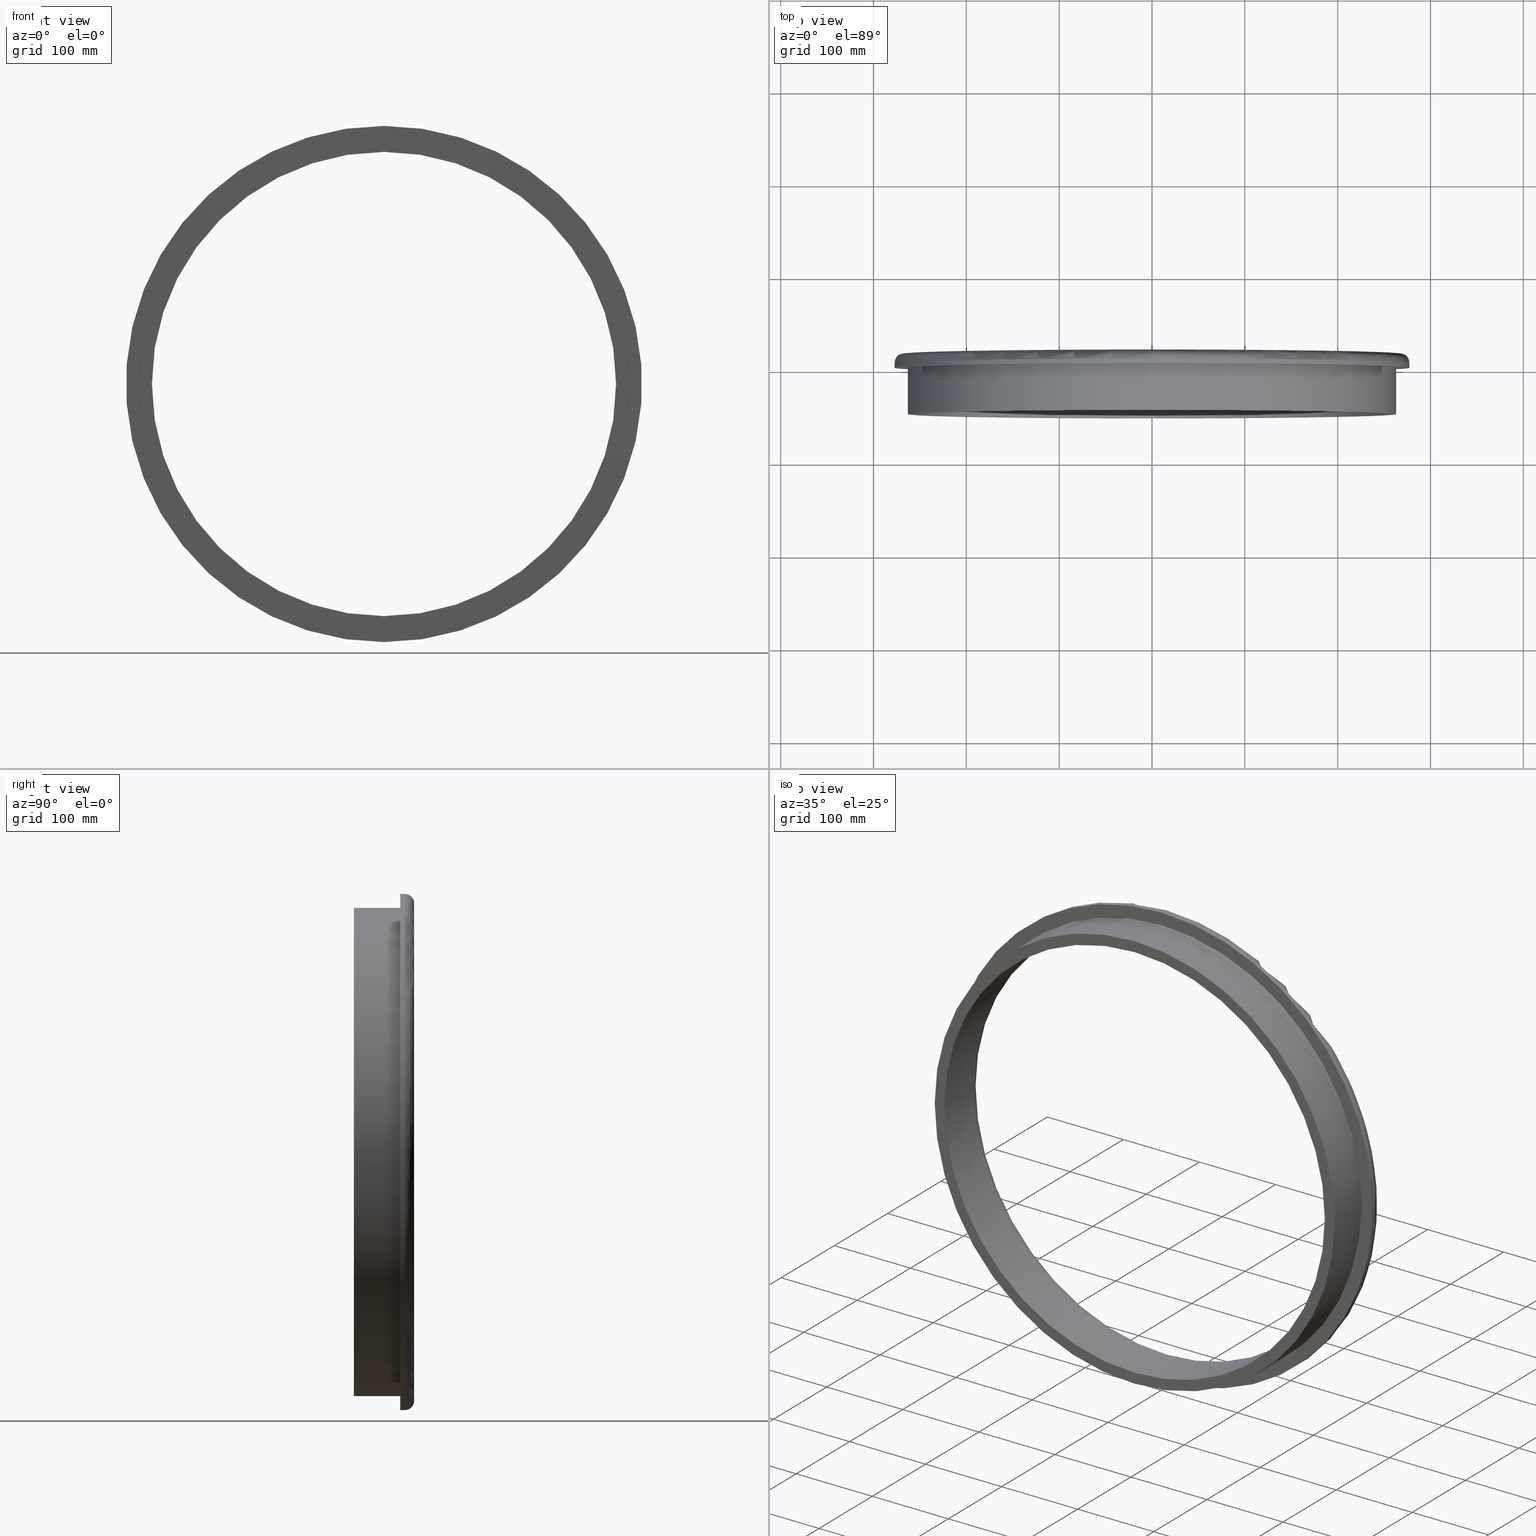
[diagram: canonical four-view strip — front | top / right | iso, engineering-drawing reading convention]
A machine part, canonical four-view strip (front | top / right | iso — engineering-drawing reading convention). The complete STEP part file that produces these views, byte-faithful:
ISO-10303-21;
HEADER;
FILE_DESCRIPTION (( 'STEP AP203' ),
    '1' );
FILE_NAME ('Rudus LV500 Muoviputken porausyhde 500.step',
    '2020-03-20T04:21:09',
    ( '' ),
    ( '' ),
    'SwSTEP 2.0',
    'SolidWorks 2019',
    '' );
FILE_SCHEMA (( 'CONFIG_CONTROL_DESIGN' ));
ENDSEC;

DATA;
#1 = LINE ( 'NONE', #325, #536 ) ;
#2 = DIRECTION ( 'NONE',  ( 0.0000000000000000000, 0.0000000000000000000, 1.000000000000000000 ) ) ;
#3 = ORIENTED_EDGE ( 'NONE', *, *, #336, .F. ) ;
#4 = CARTESIAN_POINT ( 'NONE',  ( 0.0000000000000000000, 4.999999999999997335, 0.0000000000000000000 ) ) ;
#5 = LINE ( 'NONE', #177, #359 ) ;
#6 = DIRECTION ( 'NONE',  ( -1.000000000000000000, 0.0000000000000000000, 0.0000000000000000000 ) ) ;
#7 = ADVANCED_FACE ( 'NONE', ( #234 ), #413, .T. ) ;
#8 = DIRECTION ( 'NONE',  ( 0.0000000000000000000, -0.0000000000000000000, 1.000000000000000000 ) ) ;
#9 = ORIENTED_EDGE ( 'NONE', *, *, #65, .T. ) ;
#10 = EDGE_LOOP ( 'NONE', ( #458, #101 ) ) ;
#11 = DIRECTION ( 'NONE',  ( 0.0000000000000000000, 0.0000000000000000000, 1.000000000000000000 ) ) ;
#12 = CC_DESIGN_APPROVAL ( #197, ( #546 ) ) ;
#13 = DIRECTION ( 'NONE',  ( 0.0000000000000000000, 1.000000000000000000, 0.0000000000000000000 ) ) ;
#14 = AXIS2_PLACEMENT_3D ( 'NONE', #125, #174, #11 ) ;
#15 = ORIENTED_EDGE ( 'NONE', *, *, #448, .T. ) ;
#16 = PRODUCT_DEFINITION ( 'UNKNOWN', '', #60, #378 ) ;
#17 = CIRCLE ( 'NONE', #515, 263.0000000000000568 ) ;
#18 = VERTEX_POINT ( 'NONE', #42 ) ;
#19 = AXIS2_PLACEMENT_3D ( 'NONE', #524, #103, #194 ) ;
#20 = CARTESIAN_POINT ( 'NONE',  ( 0.0000000000000000000, 4.999999999999999112, 268.0000000000000000 ) ) ;
#21 = ORIENTED_EDGE ( 'NONE', *, *, #221, .F. ) ;
#22 = CARTESIAN_POINT ( 'NONE',  ( 3.404518101629642167E-14, 4.999999999999999112, 278.0000000000000000 ) ) ;
#23 = UNCERTAINTY_MEASURE_WITH_UNIT (LENGTH_MEASURE( 1.000000000000000082E-05 ), #127, 'distance_accuracy_value', 'NONE');
#24 = VERTEX_POINT ( 'NONE', #175 ) ;
#25 = ADVANCED_FACE ( 'NONE', ( #129 ), #414, .T. ) ;
#26 = CARTESIAN_POINT ( 'NONE',  ( 3.061616997868383121E-14, -50.00000000000000000, -250.0000000000000000 ) ) ;
#27 = CIRCLE ( 'NONE', #351, 278.0000000000000000 ) ;
#28 = CC_DESIGN_PERSON_AND_ORGANIZATION_ASSIGNMENT ( #437, #396, ( #294 ) ) ;
#29 = CONTEXT_DEPENDENT_SHAPE_REPRESENTATION ( #167, #143 ) ;
#30 = COORDINATED_UNIVERSAL_TIME_OFFSET ( 2, 0, .AHEAD. ) ;
#31 = APPLICATION_PROTOCOL_DEFINITION ( 'international standard', 'config_control_design', 1994, #422 ) ;
#32 = DIRECTION ( 'NONE',  ( 0.0000000000000000000, 0.0000000000000000000, 1.000000000000000000 ) ) ;
#33 = DATE_AND_TIME ( #82, #523 ) ;
#34 = CALENDAR_DATE ( 2020, 20, 3 ) ;
#35 = ADVANCED_FACE ( 'NONE', ( #516 ), #429, .T. ) ;
#36 = COORDINATED_UNIVERSAL_TIME_OFFSET ( 2, 0, .AHEAD. ) ;
#37 = APPROVAL_PERSON_ORGANIZATION ( #468, #354, #551 ) ;
#38 = AXIS2_PLACEMENT_3D ( 'NONE', #316, #366, #320 ) ;
#39 = VECTOR ( 'NONE', #492, 1000.000000000000000 ) ;
#40 = COORDINATED_UNIVERSAL_TIME_OFFSET ( 2, 0, .AHEAD. ) ;
#41 = DIRECTION ( 'NONE',  ( 0.0000000000000000000, 1.000000000000000000, 0.0000000000000000000 ) ) ;
#42 = CARTESIAN_POINT ( 'NONE',  ( 0.0000000000000000000, 15.00000000000000000, 260.0000000000000000 ) ) ;
#43 = DIRECTION ( 'NONE',  ( 0.0000000000000000000, 0.0000000000000000000, 1.000000000000000000 ) ) ;
#44 = VERTEX_POINT ( 'NONE', #318 ) ;
#45 = DIRECTION ( 'NONE',  ( 1.000000000000000000, -0.0000000000000000000, 1.224646799147353207E-16 ) ) ;
#46 = AXIS2_PLACEMENT_3D ( 'NONE', #275, #450, #410 ) ;
#47 = CARTESIAN_POINT ( 'NONE',  ( 0.0000000000000000000, -50.00000000000000000, 0.0000000000000000000 ) ) ;
#48 = ORIENTED_EDGE ( 'NONE', *, *, #301, .T. ) ;
#49 = CARTESIAN_POINT ( 'NONE',  ( 0.0000000000000000000, -50.00000000000000000, 0.0000000000000000000 ) ) ;
#50 = DIRECTION ( 'NONE',  ( 0.0000000000000000000, 0.0000000000000000000, 1.000000000000000000 ) ) ;
#51 = EDGE_CURVE ( 'NONE', #284, #258, #17, .T. ) ;
#52 = CARTESIAN_POINT ( 'NONE',  ( 0.0000000000000000000, 0.0000000000000000000, 0.0000000000000000000 ) ) ;
#53 = PRODUCT ( 'kaivo-muovi-lapivienti', 'kaivo-muovi-lapivienti', '', ( #79 ) ) ;
#54 = ORIENTED_EDGE ( 'NONE', *, *, #445, .F. ) ;
#55 = DIRECTION ( 'NONE',  ( 0.0000000000000000000, 1.000000000000000000, 0.0000000000000000000 ) ) ;
#56 = CARTESIAN_POINT ( 'NONE',  ( 0.0000000000000000000, 0.0000000000000000000, 0.0000000000000000000 ) ) ;
#57 = DIRECTION ( 'NONE',  ( 0.0000000000000000000, 0.0000000000000000000, 1.000000000000000000 ) ) ;
#58 = ORIENTED_EDGE ( 'NONE', *, *, #538, .F. ) ;
#59 = ORIENTED_EDGE ( 'NONE', *, *, #221, .T. ) ;
#60 = PRODUCT_DEFINITION_FORMATION_WITH_SPECIFIED_SOURCE ( 'ANY', '', #70, .NOT_KNOWN. ) ;
#61 = DIRECTION ( 'NONE',  ( 0.0000000000000000000, 0.0000000000000000000, 1.000000000000000000 ) ) ;
#62 = CIRCLE ( 'NONE', #14, 278.0000000000000000 ) ;
#63 = VERTEX_POINT ( 'NONE', #219 ) ;
#64 = DIRECTION ( 'NONE',  ( -0.0000000000000000000, -1.000000000000000000, -0.0000000000000000000 ) ) ;
#65 = EDGE_CURVE ( 'NONE', #89, #44, #204, .T. ) ;
#66 = DIRECTION ( 'NONE',  ( -0.0000000000000000000, -1.000000000000000000, -0.0000000000000000000 ) ) ;
#67 = SECURITY_CLASSIFICATION ( '', '', #350 ) ;
#68 = PERSON_AND_ORGANIZATION_ROLE ( 'classification_officer' ) ;
#69 = APPROVAL_DATE_TIME ( #391, #86 ) ;
#70 = PRODUCT ( 'Rudus LV500 Muoviputken porausyhde 500', 'Rudus LV500 Muoviputken porausyhde 500', '', ( #303 ) ) ;
#71 = COORDINATED_UNIVERSAL_TIME_OFFSET ( 2, 0, .AHEAD. ) ;
#72 = COORDINATED_UNIVERSAL_TIME_OFFSET ( 2, 0, .AHEAD. ) ;
#73 = AXIS2_PLACEMENT_3D ( 'NONE', #49, #55, #521 ) ;
#74 = APPROVAL_STATUS ( 'not_yet_approved' ) ;
#75 = SHAPE_DEFINITION_REPRESENTATION ( #500, #78 ) ;
#76 = ADVANCED_FACE ( 'NONE', ( #443 ), #401, .T. ) ;
#77 = ORIENTED_EDGE ( 'NONE', *, *, #304, .F. ) ;
#78 = SHAPE_REPRESENTATION ( 'kaivo-muovi-lapivienti', ( #372 ), #435 ) ;
#79 = MECHANICAL_CONTEXT ( 'NONE', #200, 'mechanical' ) ;
#80 = PERSON_AND_ORGANIZATION_ROLE ( 'classification_officer' ) ;
#81 = CIRCLE ( 'NONE', #249, 250.0000000000000000 ) ;
#82 = CALENDAR_DATE ( 2020, 20, 3 ) ;
#83 = DIRECTION ( 'NONE',  ( 0.0000000000000000000, 0.0000000000000000000, 1.000000000000000000 ) ) ;
#84 = CARTESIAN_POINT ( 'NONE',  ( 3.220821081757540076E-14, -50.00000000000000000, -263.0000000000000568 ) ) ;
#85 = CARTESIAN_POINT ( 'NONE',  ( 0.0000000000000000000, -50.00000000000000000, 0.0000000000000000000 ) ) ;
#86 = APPROVAL ( #114, 'UNSPECIFIED' ) ;
#87 = ORIENTED_EDGE ( 'NONE', *, *, #159, .T. ) ;
#88 = DIRECTION ( 'NONE',  ( 0.0000000000000000000, 0.0000000000000000000, 1.000000000000000000 ) ) ;
#89 = VERTEX_POINT ( 'NONE', #91 ) ;
#90 = APPROVAL_PERSON_ORGANIZATION ( #544, #197, #345 ) ;
#91 = CARTESIAN_POINT ( 'NONE',  ( 0.0000000000000000000, 4.999999999999999112, -278.0000000000000000 ) ) ;
#92 = CIRCLE ( 'NONE', #264, 268.0000000000000000 ) ;
#93 = ORIENTED_EDGE ( 'NONE', *, *, #65, .F. ) ;
#94 = DIRECTION ( 'NONE',  ( 1.000000000000000000, 0.0000000000000000000, 0.0000000000000000000 ) ) ;
#95 = DIRECTION ( 'NONE',  ( 0.0000000000000000000, 0.0000000000000000000, -1.000000000000000000 ) ) ;
#96 = LINE ( 'NONE', #243, #109 ) ;
#97 = ORIENTED_EDGE ( 'NONE', *, *, #445, .T. ) ;
#98 = ORIENTED_EDGE ( 'NONE', *, *, #108, .T. ) ;
#99 = CARTESIAN_POINT ( 'NONE',  ( 0.0000000000000000000, -50.00000000000000000, 0.0000000000000000000 ) ) ;
#100 = DIRECTION ( 'NONE',  ( 0.0000000000000000000, 1.000000000000000000, 0.0000000000000000000 ) ) ;
#101 = ORIENTED_EDGE ( 'NONE', *, *, #261, .T. ) ;
#102 = CC_DESIGN_APPROVAL ( #86, ( #60 ) ) ;
#103 = DIRECTION ( 'NONE',  ( -1.000000000000000000, 0.0000000000000000000, 0.0000000000000000000 ) ) ;
#104 = CARTESIAN_POINT ( 'NONE',  ( 3.404518101629642167E-14, 15.00000000000000000, 278.0000000000000000 ) ) ;
#105 = ADVANCED_FACE ( 'NONE', ( #488 ), #522, .T. ) ;
#106 = APPROVAL_PERSON_ORGANIZATION ( #112, #338, #463 ) ;
#107 = AXIS2_PLACEMENT_3D ( 'NONE', #85, #41, #315 ) ;
#108 = EDGE_CURVE ( 'NONE', #233, #18, #309, .T. ) ;
#109 = VECTOR ( 'NONE', #66, 1000.000000000000000 ) ;
#110 = ORIENTED_EDGE ( 'NONE', *, *, #328, .T. ) ;
#111 = DATE_AND_TIME ( #254, #434 ) ;
#112 = PERSON_AND_ORGANIZATION ( #421, #163 ) ;
#113 = PERSON_AND_ORGANIZATION ( #550, #553 ) ;
#114 = APPROVAL_STATUS ( 'not_yet_approved' ) ;
#115 = APPROVAL ( #116, 'UNSPECIFIED' ) ;
#116 = APPROVAL_STATUS ( 'not_yet_approved' ) ;
#117 = EDGE_CURVE ( 'NONE', #405, #456, #150, .T. ) ;
#118 = ORIENTED_EDGE ( 'NONE', *, *, #336, .T. ) ;
#119 = AXIS2_PLACEMENT_3D ( 'NONE', #52, #407, #310 ) ;
#120 = SHAPE_DEFINITION_REPRESENTATION ( #148, #141 ) ;
#121 = CALENDAR_DATE ( 2020, 20, 3 ) ;
#122 = PERSON_AND_ORGANIZATION_ROLE ( 'creator' ) ;
#123 = AXIS2_PLACEMENT_3D ( 'NONE', #230, #170, #514 ) ;
#124 = DIRECTION ( 'NONE',  ( 0.0000000000000000000, 0.0000000000000000000, 1.000000000000000000 ) ) ;
#125 = CARTESIAN_POINT ( 'NONE',  ( 0.0000000000000000000, 4.999999999999999112, 0.0000000000000000000 ) ) ;
#126 = DIRECTION ( 'NONE',  ( 0.0000000000000000000, 1.000000000000000000, 0.0000000000000000000 ) ) ;
#127 =( LENGTH_UNIT ( ) NAMED_UNIT ( * ) SI_UNIT ( .MILLI., .METRE. ) );
#128 = ORIENTED_EDGE ( 'NONE', *, *, #424, .T. ) ;
#129 = FACE_OUTER_BOUND ( 'NONE', #278, .T. ) ;
#130 = FACE_OUTER_BOUND ( 'NONE', #245, .T. ) ;
#131 = DIRECTION ( 'NONE',  ( 0.0000000000000000000, 1.000000000000000000, 0.0000000000000000000 ) ) ;
#132 = EDGE_CURVE ( 'NONE', #284, #330, #1, .T. ) ;
#133 = CARTESIAN_POINT ( 'NONE',  ( 3.061616997868383121E-14, 4.999999999999997335, -250.0000000000000000 ) ) ;
#134 = CARTESIAN_POINT ( 'NONE',  ( 0.0000000000000000000, 15.00000000000000000, 0.0000000000000000000 ) ) ;
#135 = DIRECTION ( 'NONE',  ( 0.0000000000000000000, 1.000000000000000000, 0.0000000000000000000 ) ) ;
#136 = CLOSED_SHELL ( 'NONE', ( #76, #25, #105, #348, #425, #510, #199, #537, #280, #168, #7, #547, #35 ) ) ;
#137 = CIRCLE ( 'NONE', #384, 250.0000000000000000 ) ;
#138 = FACE_OUTER_BOUND ( 'NONE', #412, .T. ) ;
#139 = VERTEX_POINT ( 'NONE', #226 ) ;
#140 = ORIENTED_EDGE ( 'NONE', *, *, #424, .F. ) ;
#141 = SHAPE_REPRESENTATION ( 'Rudus LV500 Muoviputken porausyhde 500', ( #253, #203 ), #172 ) ;
#142 = CARTESIAN_POINT ( 'NONE',  ( 3.061616997868383121E-14, -50.00000000000000000, -250.0000000000000000 ) ) ;
#143 = PRODUCT_DEFINITION_SHAPE ( 'NONE', 'NONE',  #557 ) ;
#144 = CARTESIAN_POINT ( 'NONE',  ( 0.0000000000000000000, 15.00000000000000000, 0.0000000000000000000 ) ) ;
#145 = FACE_OUTER_BOUND ( 'NONE', #337, .T. ) ;
#146 = ORIENTED_EDGE ( 'NONE', *, *, #436, .T. ) ;
#147 = CARTESIAN_POINT ( 'NONE',  ( 0.0000000000000000000, 4.999999999999997335, 0.0000000000000000000 ) ) ;
#148 = PRODUCT_DEFINITION_SHAPE ( 'NONE', 'NONE',  #16 ) ;
#149 = DATE_TIME_ROLE ( 'classification_date' ) ;
#150 = CIRCLE ( 'NONE', #302, 278.0000000000000000 ) ;
#151 = ORIENTED_EDGE ( 'NONE', *, *, #441, .F. ) ;
#152 = EDGE_CURVE ( 'NONE', #258, #228, #5, .T. ) ;
#153 = DATE_TIME_ROLE ( 'creation_date' ) ;
#154 = ORIENTED_EDGE ( 'NONE', *, *, #246, .F. ) ;
#155 = APPROVAL_PERSON_ORGANIZATION ( #161, #344, #501 ) ;
#156 = APPLICATION_PROTOCOL_DEFINITION ( 'international standard', 'config_control_design', 1994, #218 ) ;
#157 = CIRCLE ( 'NONE', #326, 250.0000000000000000 ) ;
#158 = PERSON_AND_ORGANIZATION ( #421, #163 ) ;
#159 = EDGE_CURVE ( 'NONE', #228, #330, #300, .T. ) ;
#160 = APPLICATION_PROTOCOL_DEFINITION ( 'international standard', 'config_control_design', 1994, #200 ) ;
#161 = PERSON_AND_ORGANIZATION ( #421, #163 ) ;
#162 = PERSON_AND_ORGANIZATION_ROLE ( 'design_supplier' ) ;
#163 = ORGANIZATION ( 'UNSPECIFIED', 'UNSPECIFIED', '' ) ;
#164 = PERSON_AND_ORGANIZATION ( #421, #163 ) ;
#165 = CIRCLE ( 'NONE', #38, 10.00000000000000888 ) ;
#166 = DATE_TIME_ROLE ( 'creation_date' ) ;
#167 =( REPRESENTATION_RELATIONSHIP ('NONE','NONE', #141, #78 ) REPRESENTATION_RELATIONSHIP_WITH_TRANSFORMATION ( #431 )SHAPE_REPRESENTATION_RELATIONSHIP( ) );
#168 = ADVANCED_FACE ( 'NONE', ( #364, #178 ), #525, .F. ) ;
#169 = APPROVAL_DATE_TIME ( #509, #354 ) ;
#170 = DIRECTION ( 'NONE',  ( 0.0000000000000000000, 0.0000000000000000000, 1.000000000000000000 ) ) ;
#171 = CC_DESIGN_APPROVAL ( #354, ( #294 ) ) ;
#172 =( GEOMETRIC_REPRESENTATION_CONTEXT ( 3 ) GLOBAL_UNCERTAINTY_ASSIGNED_CONTEXT ( ( #23 ) ) GLOBAL_UNIT_ASSIGNED_CONTEXT ( ( #127, #319, #426 ) ) REPRESENTATION_CONTEXT ( 'NONE', 'WORKASPACE' ) );
#173 = DIRECTION ( 'NONE',  ( 0.0000000000000000000, 1.000000000000000000, 0.0000000000000000000 ) ) ;
#174 = DIRECTION ( 'NONE',  ( -0.0000000000000000000, -1.000000000000000000, -0.0000000000000000000 ) ) ;
#175 = CARTESIAN_POINT ( 'NONE',  ( 0.0000000000000000000, -50.00000000000000000, 250.0000000000000000 ) ) ;
#176 =( NAMED_UNIT ( * ) PLANE_ANGLE_UNIT ( ) SI_UNIT ( $, .RADIAN. ) );
#177 = CARTESIAN_POINT ( 'NONE',  ( 3.220821081757540076E-14, -50.00000000000000000, -263.0000000000000568 ) ) ;
#178 = FACE_OUTER_BOUND ( 'NONE', #183, .T. ) ;
#179 = DIRECTION ( 'NONE',  ( 0.0000000000000000000, 1.000000000000000000, 0.0000000000000000000 ) ) ;
#180 = DIRECTION ( 'NONE',  ( 0.0000000000000000000, 1.000000000000000000, 0.0000000000000000000 ) ) ;
#181 = DIRECTION ( 'NONE',  ( 0.0000000000000000000, 0.0000000000000000000, 1.000000000000000000 ) ) ;
#182 = PLANE ( 'NONE',  #503 ) ;
#183 = EDGE_LOOP ( 'NONE', ( #461, #77 ) ) ;
#184 = ORIENTED_EDGE ( 'NONE', *, *, #132, .F. ) ;
#185 = DIRECTION ( 'NONE',  ( 0.0000000000000000000, 0.0000000000000000000, 1.000000000000000000 ) ) ;
#186 = CARTESIAN_POINT ( 'NONE',  ( 0.0000000000000000000, -50.00000000000000000, 0.0000000000000000000 ) ) ;
#187 = AXIS2_PLACEMENT_3D ( 'NONE', #99, #416, #459 ) ;
#188 = ORIENTED_EDGE ( 'NONE', *, *, #259, .T. ) ;
#189 = DIRECTION ( 'NONE',  ( 0.0000000000000000000, 1.000000000000000000, 0.0000000000000000000 ) ) ;
#190 = ORIENTED_EDGE ( 'NONE', *, *, #51, .T. ) ;
#191 = CC_DESIGN_PERSON_AND_ORGANIZATION_ASSIGNMENT ( #164, #545, ( #70 ) ) ;
#192 = DIRECTION ( 'NONE',  ( 0.0000000000000000000, 1.000000000000000000, 0.0000000000000000000 ) ) ;
#193 = EDGE_LOOP ( 'NONE', ( #3, #15, #455, #229 ) ) ;
#194 = DIRECTION ( 'NONE',  ( 0.0000000000000000000, 0.0000000000000000000, 1.000000000000000000 ) ) ;
#195 = EDGE_CURVE ( 'NONE', #233, #531, #165, .T. ) ;
#196 = AXIS2_PLACEMENT_3D ( 'NONE', #532, #135, #236 ) ;
#197 = APPROVAL ( #511, 'UNSPECIFIED' ) ;
#198 = VECTOR ( 'NONE', #288, 1000.000000000000000 ) ;
#199 = ADVANCED_FACE ( 'NONE', ( #446, #138 ), #182, .F. ) ;
#200 = APPLICATION_CONTEXT ( 'configuration controlled 3d designs of mechanical parts and assemblies' ) ;
#201 = PERSON_AND_ORGANIZATION_ROLE ( 'creator' ) ;
#202 = PERSON_AND_ORGANIZATION_ROLE ( 'creator' ) ;
#203 = AXIS2_PLACEMENT_3D ( 'NONE', #477, #88, #360 ) ;
#204 = CIRCLE ( 'NONE', #223, 10.00000000000000888 ) ;
#205 = COORDINATED_UNIVERSAL_TIME_OFFSET ( 2, 0, .AHEAD. ) ;
#206 = CC_DESIGN_PERSON_AND_ORGANIZATION_ASSIGNMENT ( #298, #201, ( #60 ) ) ;
#207 = ADVANCED_BREP_SHAPE_REPRESENTATION ( '', ( #270, #372 ), #435 ) ;
#208 = APPROVAL_STATUS ( 'not_yet_approved' ) ;
#209 = COORDINATED_UNIVERSAL_TIME_OFFSET ( 2, 0, .AHEAD. ) ;
#210 = CC_DESIGN_APPROVAL ( #344, ( #16 ) ) ;
#211 = APPROVAL_ROLE ( '' ) ;
#212 = LOCAL_TIME ( 6, 21, 9.000000000000000000, #40 ) ;
#213 = COORDINATED_UNIVERSAL_TIME_OFFSET ( 2, 0, .AHEAD. ) ;
#214 = DIRECTION ( 'NONE',  ( 0.0000000000000000000, 1.000000000000000000, 0.0000000000000000000 ) ) ;
#215 = CARTESIAN_POINT ( 'NONE',  ( 0.0000000000000000000, 4.999999999999999112, 0.0000000000000000000 ) ) ;
#216 = APPROVAL_DATE_TIME ( #255, #338 ) ;
#217 = CC_DESIGN_DATE_AND_TIME_ASSIGNMENT ( #260, #166, ( #294 ) ) ;
#218 = APPLICATION_CONTEXT ( 'configuration controlled 3d designs of mechanical parts and assemblies' ) ;
#219 = CARTESIAN_POINT ( 'NONE',  ( 0.0000000000000000000, 4.999999999999997335, 250.0000000000000000 ) ) ;
#220 = CC_DESIGN_DATE_AND_TIME_ASSIGNMENT ( #111, #149, ( #67 ) ) ;
#221 = EDGE_CURVE ( 'NONE', #44, #139, #92, .T. ) ;
#222 = FACE_OUTER_BOUND ( 'NONE', #540, .T. ) ;
#223 = AXIS2_PLACEMENT_3D ( 'NONE', #479, #45, #442 ) ;
#224 = DIRECTION ( 'NONE',  ( 0.0000000000000000000, -0.0000000000000000000, 1.000000000000000000 ) ) ;
#225 = ORIENTED_EDGE ( 'NONE', *, *, #301, .F. ) ;
#226 = CARTESIAN_POINT ( 'NONE',  ( 0.0000000000000000000, 15.00000000000000000, 268.0000000000000000 ) ) ;
#227 = DIRECTION ( 'NONE',  ( 0.0000000000000000000, 1.000000000000000000, 0.0000000000000000000 ) ) ;
#228 = VERTEX_POINT ( 'NONE', #520 ) ;
#229 = ORIENTED_EDGE ( 'NONE', *, *, #117, .T. ) ;
#230 = CARTESIAN_POINT ( 'NONE',  ( 0.0000000000000000000, 0.0000000000000000000, 0.0000000000000000000 ) ) ;
#231 = DIRECTION ( 'NONE',  ( 0.0000000000000000000, 0.0000000000000000000, 1.000000000000000000 ) ) ;
#232 = DIRECTION ( 'NONE',  ( 0.0000000000000000000, 0.0000000000000000000, 1.000000000000000000 ) ) ;
#233 = VERTEX_POINT ( 'NONE', #451 ) ;
#234 = FACE_OUTER_BOUND ( 'NONE', #193, .T. ) ;
#235 = APPROVAL_PERSON_ORGANIZATION ( #353, #115, #211 ) ;
#236 = DIRECTION ( 'NONE',  ( 0.0000000000000000000, -0.0000000000000000000, 1.000000000000000000 ) ) ;
#237 = AXIS2_PLACEMENT_3D ( 'NONE', #186, #100, #517 ) ;
#238 = CIRCLE ( 'NONE', #395, 278.0000000000000000 ) ;
#239 = ORIENTED_EDGE ( 'NONE', *, *, #369, .F. ) ;
#240 = CARTESIAN_POINT ( 'NONE',  ( 0.0000000000000000000, 0.0000000000000000000, 0.0000000000000000000 ) ) ;
#241 = CC_DESIGN_PERSON_AND_ORGANIZATION_ASSIGNMENT ( #113, #68, ( #67 ) ) ;
#242 = ORIENTED_EDGE ( 'NONE', *, *, #195, .T. ) ;
#243 = CARTESIAN_POINT ( 'NONE',  ( 0.0000000000000000000, 15.00000000000000000, -278.0000000000000000 ) ) ;
#244 = APPROVAL_DATE_TIME ( #542, #464 ) ;
#245 = EDGE_LOOP ( 'NONE', ( #140, #151, #110, #493 ) ) ;
#246 = EDGE_CURVE ( 'NONE', #330, #228, #423, .T. ) ;
#247 = LOCAL_TIME ( 6, 21, 9.000000000000000000, #205 ) ;
#248 = AXIS2_PLACEMENT_3D ( 'NONE', #519, #485, #95 ) ;
#249 = AXIS2_PLACEMENT_3D ( 'NONE', #147, #286, #61 ) ;
#250 = PERSON_AND_ORGANIZATION_ROLE ( 'classification_officer' ) ;
#251 = APPROVAL_STATUS ( 'not_yet_approved' ) ;
#252 = CC_DESIGN_SECURITY_CLASSIFICATION ( #67, ( #557 ) ) ;
#253 = AXIS2_PLACEMENT_3D ( 'NONE', #430, #32, #392 ) ;
#254 = CALENDAR_DATE ( 2020, 20, 3 ) ;
#255 = DATE_AND_TIME ( #427, #388 ) ;
#256 = CALENDAR_DATE ( 2020, 20, 3 ) ;
#257 = PERSON_AND_ORGANIZATION ( #421, #163 ) ;
#258 = VERTEX_POINT ( 'NONE', #84 ) ;
#259 = EDGE_CURVE ( 'NONE', #18, #233, #447, .T. ) ;
#260 = DATE_AND_TIME ( #308, #212 ) ;
#261 = EDGE_CURVE ( 'NONE', #331, #24, #548, .T. ) ;
#262 = APPROVAL_PERSON_ORGANIZATION ( #113, #464, #296 ) ;
#263 = PERSON_AND_ORGANIZATION ( #421, #163 ) ;
#264 = AXIS2_PLACEMENT_3D ( 'NONE', #329, #227, #2 ) ;
#265 = AXIS2_PLACEMENT_3D ( 'NONE', #20, #6, #181 ) ;
#266 = APPROVAL_DATE_TIME ( #33, #115 ) ;
#267 = DIRECTION ( 'NONE',  ( 0.0000000000000000000, 0.0000000000000000000, 1.000000000000000000 ) ) ;
#268 = ORIENTED_EDGE ( 'NONE', *, *, #369, .T. ) ;
#269 = DIRECTION ( 'NONE',  ( 0.0000000000000000000, 0.0000000000000000000, -1.000000000000000000 ) ) ;
#270 = MANIFOLD_SOLID_BREP ( 'Fillet1', #136 ) ;
#271 = CC_DESIGN_DATE_AND_TIME_ASSIGNMENT ( #543, #505, ( #349 ) ) ;
#272 = DIRECTION ( 'NONE',  ( 0.0000000000000000000, 1.000000000000000000, 0.0000000000000000000 ) ) ;
#273 = LOCAL_TIME ( 6, 21, 9.000000000000000000, #209 ) ;
#274 = AXIS2_PLACEMENT_3D ( 'NONE', #370, #192, #232 ) ;
#275 = CARTESIAN_POINT ( 'NONE',  ( 0.0000000000000000000, 0.0000000000000000000, 0.0000000000000000000 ) ) ;
#276 = CIRCLE ( 'NONE', #19, 10.00000000000000888 ) ;
#277 = EDGE_LOOP ( 'NONE', ( #490, #97, #496, #452 ) ) ;
#278 = EDGE_LOOP ( 'NONE', ( #470, #242, #487, #239 ) ) ;
#279 = DIRECTION ( 'NONE',  ( 0.0000000000000000000, 1.000000000000000000, 0.0000000000000000000 ) ) ;
#280 = ADVANCED_FACE ( 'NONE', ( #420, #145 ), #418, .T. ) ;
#281 = CARTESIAN_POINT ( 'NONE',  ( 0.0000000000000000000, -50.00000000000000000, 0.0000000000000000000 ) ) ;
#282 = ORIENTED_EDGE ( 'NONE', *, *, #482, .F. ) ;
#283 = DIRECTION ( 'NONE',  ( 0.0000000000000000000, 1.000000000000000000, 0.0000000000000000000 ) ) ;
#284 = VERTEX_POINT ( 'NONE', #406 ) ;
#285 = APPROVAL_PERSON_ORGANIZATION ( #257, #86, #393 ) ;
#286 = DIRECTION ( 'NONE',  ( 0.0000000000000000000, 1.000000000000000000, 0.0000000000000000000 ) ) ;
#287 = CC_DESIGN_PERSON_AND_ORGANIZATION_ASSIGNMENT ( #506, #122, ( #546 ) ) ;
#288 = DIRECTION ( 'NONE',  ( -0.0000000000000000000, -1.000000000000000000, -0.0000000000000000000 ) ) ;
#289 = DESIGN_CONTEXT ( 'detailed design', #292, 'design' ) ;
#290 = CALENDAR_DATE ( 2020, 20, 3 ) ;
#291 = LOCAL_TIME ( 6, 21, 9.000000000000000000, #72 ) ;
#292 = APPLICATION_CONTEXT ( 'configuration controlled 3d designs of mechanical parts and assemblies' ) ;
#293 = AXIS2_PLACEMENT_3D ( 'NONE', #362, #476, #83 ) ;
#294 = PRODUCT_DEFINITION ( 'UNKNOWN', '', #546, #289 ) ;
#295 = EDGE_LOOP ( 'NONE', ( #527, #128, #526, #499 ) ) ;
#296 = APPROVAL_ROLE ( '' ) ;
#297 = CALENDAR_DATE ( 2020, 20, 3 ) ;
#298 = PERSON_AND_ORGANIZATION ( #421, #163 ) ;
#299 = APPLICATION_PROTOCOL_DEFINITION ( 'international standard', 'config_control_design', 1994, #292 ) ;
#300 = CIRCLE ( 'NONE', #46, 263.0000000000000568 ) ;
#301 = EDGE_CURVE ( 'NONE', #139, #44, #508, .T. ) ;
#302 = AXIS2_PLACEMENT_3D ( 'NONE', #56, #131, #231 ) ;
#303 = MECHANICAL_CONTEXT ( 'NONE', #218, 'mechanical' ) ;
#304 = EDGE_CURVE ( 'NONE', #456, #405, #27, .T. ) ;
#305 = APPROVAL_DATE_TIME ( #306, #197 ) ;
#306 = DATE_AND_TIME ( #121, #380 ) ;
#307 = LOCAL_TIME ( 6, 21, 9.000000000000000000, #347 ) ;
#308 = CALENDAR_DATE ( 2020, 20, 3 ) ;
#309 = CIRCLE ( 'NONE', #438, 260.0000000000000000 ) ;
#310 = DIRECTION ( 'NONE',  ( 0.0000000000000000000, 0.0000000000000000000, 1.000000000000000000 ) ) ;
#311 = SHAPE_REPRESENTATION_RELATIONSHIP ( 'NONE' , 'NONE' ,  #78, #207 ) ;
#312 = CC_DESIGN_DATE_AND_TIME_ASSIGNMENT ( #433, #472, ( #486 ) ) ;
#313 = VERTEX_POINT ( 'NONE', #22 ) ;
#314 = DIRECTION ( 'NONE',  ( 0.0000000000000000000, 0.0000000000000000000, 1.000000000000000000 ) ) ;
#315 = DIRECTION ( 'NONE',  ( 0.0000000000000000000, 0.0000000000000000000, 1.000000000000000000 ) ) ;
#316 = CARTESIAN_POINT ( 'NONE',  ( 3.184081677783118901E-14, 4.999999999999997335, -260.0000000000000000 ) ) ;
#317 = ORIENTED_EDGE ( 'NONE', *, *, #246, .T. ) ;
#318 = CARTESIAN_POINT ( 'NONE',  ( 3.343285761672273962E-14, 15.00000000000000000, -268.0000000000000000 ) ) ;
#319 =( NAMED_UNIT ( * ) PLANE_ANGLE_UNIT ( ) SI_UNIT ( $, .RADIAN. ) );
#320 = DIRECTION ( 'NONE',  ( 1.224646799147349509E-16, 0.0000000000000000000, -1.000000000000000000 ) ) ;
#321 = ORIENTED_EDGE ( 'NONE', *, *, #152, .T. ) ;
#322 = LOCAL_TIME ( 6, 21, 9.000000000000000000, #36 ) ;
#323 = EDGE_CURVE ( 'NONE', #63, #531, #81, .T. ) ;
#324 = CARTESIAN_POINT ( 'NONE',  ( 0.0000000000000000000, 4.999999999999997335, 0.0000000000000000000 ) ) ;
#325 = CARTESIAN_POINT ( 'NONE',  ( 0.0000000000000000000, -50.00000000000000000, 263.0000000000000568 ) ) ;
#326 = AXIS2_PLACEMENT_3D ( 'NONE', #281, #189, #57 ) ;
#327 = CARTESIAN_POINT ( 'NONE',  ( 0.0000000000000000000, 0.0000000000000000000, 263.0000000000000568 ) ) ;
#328 = EDGE_CURVE ( 'NONE', #24, #63, #377, .T. ) ;
#329 = CARTESIAN_POINT ( 'NONE',  ( 0.0000000000000000000, 15.00000000000000000, 0.0000000000000000000 ) ) ;
#330 = VERTEX_POINT ( 'NONE', #327 ) ;
#331 = VERTEX_POINT ( 'NONE', #142 ) ;
#332 = LINE ( 'NONE', #26, #39 ) ;
#333 = EDGE_LOOP ( 'NONE', ( #190, #321, #154, #184 ) ) ;
#334 = DIRECTION ( 'NONE',  ( 0.0000000000000000000, 0.0000000000000000000, 1.000000000000000000 ) ) ;
#335 = DIRECTION ( 'NONE',  ( 0.0000000000000000000, 1.000000000000000000, 0.0000000000000000000 ) ) ;
#336 = EDGE_CURVE ( 'NONE', #313, #456, #497, .T. ) ;
#337 = EDGE_LOOP ( 'NONE', ( #48, #59 ) ) ;
#338 = APPROVAL ( #74, 'UNSPECIFIED' ) ;
#339 = PERSON_AND_ORGANIZATION_ROLE ( 'design_supplier' ) ;
#340 = AXIS2_PLACEMENT_3D ( 'NONE', #356, #513, #124 ) ;
#341 = APPROVAL_STATUS ( 'not_yet_approved' ) ;
#342 = AXIS2_PLACEMENT_3D ( 'NONE', #494, #283, #489 ) ;
#343 = APPROVAL_DATE_TIME ( #507, #344 ) ;
#344 = APPROVAL ( #251, 'UNSPECIFIED' ) ;
#345 = APPROVAL_ROLE ( '' ) ;
#346 = CC_DESIGN_PERSON_AND_ORGANIZATION_ASSIGNMENT ( #440, #80, ( #486 ) ) ;
#347 = COORDINATED_UNIVERSAL_TIME_OFFSET ( 2, 0, .AHEAD. ) ;
#348 = ADVANCED_FACE ( 'NONE', ( #411 ), #460, .F. ) ;
#349 = SECURITY_CLASSIFICATION ( '', '', #385 ) ;
#350 = SECURITY_CLASSIFICATION_LEVEL ( 'unclassified' ) ;
#351 = AXIS2_PLACEMENT_3D ( 'NONE', #240, #528, #334 ) ;
#352 = VECTOR ( 'NONE', #335, 1000.000000000000000 ) ;
#353 = PERSON_AND_ORGANIZATION ( #421, #163 ) ;
#354 = APPROVAL ( #208, 'UNSPECIFIED' ) ;
#355 = COORDINATED_UNIVERSAL_TIME_OFFSET ( 2, 0, .AHEAD. ) ;
#356 = CARTESIAN_POINT ( 'NONE',  ( 0.0000000000000000000, 15.00000000000000000, 0.0000000000000000000 ) ) ;
#357 = CYLINDRICAL_SURFACE ( 'NONE', #107, 250.0000000000000000 ) ;
#358 = CC_DESIGN_APPROVAL ( #338, ( #349 ) ) ;
#359 = VECTOR ( 'NONE', #279, 1000.000000000000000 ) ;
#360 = DIRECTION ( 'NONE',  ( 1.000000000000000000, 0.0000000000000000000, 0.0000000000000000000 ) ) ;
#361 = ORIENTED_EDGE ( 'NONE', *, *, #51, .F. ) ;
#362 = CARTESIAN_POINT ( 'NONE',  ( 0.0000000000000000000, 4.999999999999997335, 0.0000000000000000000 ) ) ;
#363 = CYLINDRICAL_SURFACE ( 'NONE', #73, 263.0000000000000568 ) ;
#364 = FACE_BOUND ( 'NONE', #373, .T. ) ;
#365 = EDGE_CURVE ( 'NONE', #89, #405, #96, .T. ) ;
#366 = DIRECTION ( 'NONE',  ( 1.000000000000000000, -0.0000000000000000000, 1.224646799147353207E-16 ) ) ;
#367 = FACE_OUTER_BOUND ( 'NONE', #277, .T. ) ;
#368 = DIRECTION ( 'NONE',  ( 0.0000000000000000000, 1.000000000000000000, 0.0000000000000000000 ) ) ;
#369 = EDGE_CURVE ( 'NONE', #18, #63, #276, .T. ) ;
#370 = CARTESIAN_POINT ( 'NONE',  ( 0.0000000000000000000, 15.00000000000000000, 0.0000000000000000000 ) ) ;
#371 = DIRECTION ( 'NONE',  ( 0.0000000000000000000, 1.000000000000000000, 0.0000000000000000000 ) ) ;
#372 = AXIS2_PLACEMENT_3D ( 'NONE', #449, #43, #94 ) ;
#373 = EDGE_LOOP ( 'NONE', ( #317, #87 ) ) ;
#374 = CARTESIAN_POINT ( 'NONE',  ( 0.0000000000000000000, -50.00000000000000000, 250.0000000000000000 ) ) ;
#375 = CARTESIAN_POINT ( 'NONE',  ( 0.0000000000000000000, -50.00000000000000000, 0.0000000000000000000 ) ) ;
#376 = ORIENTED_EDGE ( 'NONE', *, *, #259, .F. ) ;
#377 = LINE ( 'NONE', #374, #352 ) ;
#378 = DESIGN_CONTEXT ( 'detailed design', #422, 'design' ) ;
#379 = ORIENTED_EDGE ( 'NONE', *, *, #195, .F. ) ;
#380 = LOCAL_TIME ( 6, 21, 9.000000000000000000, #213 ) ;
#381 = CC_DESIGN_PERSON_AND_ORGANIZATION_ASSIGNMENT ( #539, #250, ( #349 ) ) ;
#382 = AXIS2_PLACEMENT_3D ( 'NONE', #404, #272, #8 ) ;
#383 = CYLINDRICAL_SURFACE ( 'NONE', #187, 263.0000000000000568 ) ;
#384 = AXIS2_PLACEMENT_3D ( 'NONE', #4, #179, #554 ) ;
#385 = SECURITY_CLASSIFICATION_LEVEL ( 'unclassified' ) ;
#386 = CC_DESIGN_PERSON_AND_ORGANIZATION_ASSIGNMENT ( #158, #202, ( #16 ) ) ;
#387 = CALENDAR_DATE ( 2020, 20, 3 ) ;
#388 = LOCAL_TIME ( 6, 21, 9.000000000000000000, #71 ) ;
#389 = TOROIDAL_SURFACE ( 'NONE', #400, 260.0000000000000000, 10.00000000000000000 ) ;
#390 = COORDINATED_UNIVERSAL_TIME_OFFSET ( 2, 0, .AHEAD. ) ;
#391 = DATE_AND_TIME ( #297, #247 ) ;
#392 = DIRECTION ( 'NONE',  ( 1.000000000000000000, 0.0000000000000000000, 0.0000000000000000000 ) ) ;
#393 = APPROVAL_ROLE ( '' ) ;
#394 = CALENDAR_DATE ( 2020, 20, 3 ) ;
#395 = AXIS2_PLACEMENT_3D ( 'NONE', #530, #64, #409 ) ;
#396 = PERSON_AND_ORGANIZATION_ROLE ( 'creator' ) ;
#397 = DIRECTION ( 'NONE',  ( -0.0000000000000000000, -1.000000000000000000, -0.0000000000000000000 ) ) ;
#398 = CC_DESIGN_DATE_AND_TIME_ASSIGNMENT ( #469, #153, ( #16 ) ) ;
#399 = CC_DESIGN_APPROVAL ( #464, ( #67 ) ) ;
#400 = AXIS2_PLACEMENT_3D ( 'NONE', #324, #214, #402 ) ;
#401 = TOROIDAL_SURFACE ( 'NONE', #462, 268.0000000000000000, 10.00000000000000000 ) ;
#402 = DIRECTION ( 'NONE',  ( 0.0000000000000000000, 0.0000000000000000000, 1.000000000000000000 ) ) ;
#403 = DIRECTION ( 'NONE',  ( 0.0000000000000000000, 0.0000000000000000000, 1.000000000000000000 ) ) ;
#404 = CARTESIAN_POINT ( 'NONE',  ( 0.0000000000000000000, 0.0000000000000000000, 0.0000000000000000000 ) ) ;
#405 = VERTEX_POINT ( 'NONE', #454 ) ;
#406 = CARTESIAN_POINT ( 'NONE',  ( 0.0000000000000000000, -50.00000000000000000, 263.0000000000000568 ) ) ;
#407 = DIRECTION ( 'NONE',  ( 0.0000000000000000000, 1.000000000000000000, 0.0000000000000000000 ) ) ;
#408 = EDGE_LOOP ( 'NONE', ( #188, #98 ) ) ;
#409 = DIRECTION ( 'NONE',  ( 0.0000000000000000000, 0.0000000000000000000, 1.000000000000000000 ) ) ;
#410 = DIRECTION ( 'NONE',  ( 0.0000000000000000000, 0.0000000000000000000, 1.000000000000000000 ) ) ;
#411 = FACE_OUTER_BOUND ( 'NONE', #295, .T. ) ;
#412 = EDGE_LOOP ( 'NONE', ( #361, #54 ) ) ;
#413 = CYLINDRICAL_SURFACE ( 'NONE', #467, 278.0000000000000000 ) ;
#414 = TOROIDAL_SURFACE ( 'NONE', #293, 260.0000000000000000, 10.00000000000000000 ) ;
#415 = PRODUCT_RELATED_PRODUCT_CATEGORY ( 'detail', '', ( #70 ) ) ;
#416 = DIRECTION ( 'NONE',  ( 0.0000000000000000000, 1.000000000000000000, 0.0000000000000000000 ) ) ;
#417 = ORIENTED_EDGE ( 'NONE', *, *, #304, .T. ) ;
#418 = PLANE ( 'NONE',  #196 ) ;
#419 = ORIENTED_EDGE ( 'NONE', *, *, #538, .T. ) ;
#420 = FACE_BOUND ( 'NONE', #408, .T. ) ;
#421 = PERSON ( 'UNSPECIFIED', 'UNSPECIFIED', 'UNSPECIFIED', ('UNSPECIFIED'), ('UNSPECIFIED'), ('UNSPECIFIED') ) ;
#422 = APPLICATION_CONTEXT ( 'configuration controlled 3d designs of mechanical parts and assemblies' ) ;
#423 = CIRCLE ( 'NONE', #119, 263.0000000000000568 ) ;
#424 = EDGE_CURVE ( 'NONE', #331, #531, #332, .T. ) ;
#425 = ADVANCED_FACE ( 'NONE', ( #457 ), #383, .T. ) ;
#426 =( NAMED_UNIT ( * ) SI_UNIT ( $, .STERADIAN. ) SOLID_ANGLE_UNIT ( ) );
#427 = CALENDAR_DATE ( 2020, 20, 3 ) ;
#428 = CC_DESIGN_SECURITY_CLASSIFICATION ( #349, ( #60 ) ) ;
#429 = TOROIDAL_SURFACE ( 'NONE', #555, 268.0000000000000000, 10.00000000000000000 ) ;
#430 = CARTESIAN_POINT ( 'NONE',  ( 0.0000000000000000000, 0.0000000000000000000, 0.0000000000000000000 ) ) ;
#431 = ITEM_DEFINED_TRANSFORMATION ( 'NONE', 'NONE', #203,  #372 ) ;
#432 = CALENDAR_DATE ( 2020, 20, 3 ) ;
#433 = DATE_AND_TIME ( #394, #322 ) ;
#434 = LOCAL_TIME ( 6, 21, 9.000000000000000000, #390 ) ;
#435 =( GEOMETRIC_REPRESENTATION_CONTEXT ( 3 ) GLOBAL_UNCERTAINTY_ASSIGNED_CONTEXT ( ( #498 ) ) GLOBAL_UNIT_ASSIGNED_CONTEXT ( ( #480, #176, #484 ) ) REPRESENTATION_CONTEXT ( 'NONE', 'WORKASPACE' ) );
#436 = EDGE_CURVE ( 'NONE', #313, #139, #439, .T. ) ;
#437 = PERSON_AND_ORGANIZATION ( #421, #163 ) ;
#438 = AXIS2_PLACEMENT_3D ( 'NONE', #134, #453, #403 ) ;
#439 = CIRCLE ( 'NONE', #265, 10.00000000000000888 ) ;
#440 = PERSON_AND_ORGANIZATION ( #421, #163 ) ;
#441 = EDGE_CURVE ( 'NONE', #24, #331, #157, .T. ) ;
#442 = DIRECTION ( 'NONE',  ( 1.224646799147349509E-16, 0.0000000000000000000, -1.000000000000000000 ) ) ;
#443 = FACE_OUTER_BOUND ( 'NONE', #491, .T. ) ;
#444 = CC_DESIGN_SECURITY_CLASSIFICATION ( #486, ( #546 ) ) ;
#445 = EDGE_CURVE ( 'NONE', #258, #284, #475, .T. ) ;
#446 = FACE_BOUND ( 'NONE', #10, .T. ) ;
#447 = CIRCLE ( 'NONE', #340, 260.0000000000000000 ) ;
#448 = EDGE_CURVE ( 'NONE', #313, #89, #238, .T. ) ;
#449 = CARTESIAN_POINT ( 'NONE',  ( 0.0000000000000000000, 0.0000000000000000000, 0.0000000000000000000 ) ) ;
#450 = DIRECTION ( 'NONE',  ( 0.0000000000000000000, 1.000000000000000000, 0.0000000000000000000 ) ) ;
#451 = CARTESIAN_POINT ( 'NONE',  ( 3.184081677783118901E-14, 15.00000000000000000, -260.0000000000000000 ) ) ;
#452 = ORIENTED_EDGE ( 'NONE', *, *, #159, .F. ) ;
#453 = DIRECTION ( 'NONE',  ( -0.0000000000000000000, -1.000000000000000000, -0.0000000000000000000 ) ) ;
#454 = CARTESIAN_POINT ( 'NONE',  ( 0.0000000000000000000, 0.0000000000000000000, -278.0000000000000000 ) ) ;
#455 = ORIENTED_EDGE ( 'NONE', *, *, #365, .T. ) ;
#456 = VERTEX_POINT ( 'NONE', #518 ) ;
#457 = FACE_OUTER_BOUND ( 'NONE', #333, .T. ) ;
#458 = ORIENTED_EDGE ( 'NONE', *, *, #441, .T. ) ;
#459 = DIRECTION ( 'NONE',  ( 0.0000000000000000000, 0.0000000000000000000, 1.000000000000000000 ) ) ;
#460 = CYLINDRICAL_SURFACE ( 'NONE', #342, 250.0000000000000000 ) ;
#461 = ORIENTED_EDGE ( 'NONE', *, *, #117, .F. ) ;
#462 = AXIS2_PLACEMENT_3D ( 'NONE', #556, #368, #50 ) ;
#463 = APPROVAL_ROLE ( '' ) ;
#464 = APPROVAL ( #341, 'UNKNOWN' ) ;
#465 = PERSON_AND_ORGANIZATION ( #421, #163 ) ;
#466 = CC_DESIGN_PERSON_AND_ORGANIZATION_ASSIGNMENT ( #465, #339, ( #60 ) ) ;
#467 = AXIS2_PLACEMENT_3D ( 'NONE', #144, #397, #269 ) ;
#468 = PERSON_AND_ORGANIZATION ( #421, #163 ) ;
#469 = DATE_AND_TIME ( #34, #273 ) ;
#470 = ORIENTED_EDGE ( 'NONE', *, *, #108, .F. ) ;
#471 = SECURITY_CLASSIFICATION_LEVEL ( 'unclassified' ) ;
#472 = DATE_TIME_ROLE ( 'classification_date' ) ;
#473 = LOCAL_TIME ( 6, 21, 9.000000000000000000, #355 ) ;
#474 = PERSON_AND_ORGANIZATION ( #421, #163 ) ;
#475 = CIRCLE ( 'NONE', #504, 263.0000000000000568 ) ;
#476 = DIRECTION ( 'NONE',  ( 0.0000000000000000000, 1.000000000000000000, 0.0000000000000000000 ) ) ;
#477 = CARTESIAN_POINT ( 'NONE',  ( 0.0000000000000000000, 0.0000000000000000000, 0.0000000000000000000 ) ) ;
#478 = ORIENTED_EDGE ( 'NONE', *, *, #436, .F. ) ;
#479 = CARTESIAN_POINT ( 'NONE',  ( 3.282053421714907019E-14, 4.999999999999999112, -268.0000000000000000 ) ) ;
#480 =( LENGTH_UNIT ( ) NAMED_UNIT ( * ) SI_UNIT ( .MILLI., .METRE. ) );
#481 = ORIENTED_EDGE ( 'NONE', *, *, #448, .F. ) ;
#482 = EDGE_CURVE ( 'NONE', #531, #63, #137, .T. ) ;
#483 = CARTESIAN_POINT ( 'NONE',  ( 0.0000000000000000000, -50.00000000000000000, 0.0000000000000000000 ) ) ;
#484 =( NAMED_UNIT ( * ) SI_UNIT ( $, .STERADIAN. ) SOLID_ANGLE_UNIT ( ) );
#485 = DIRECTION ( 'NONE',  ( -0.0000000000000000000, -1.000000000000000000, -0.0000000000000000000 ) ) ;
#486 = SECURITY_CLASSIFICATION ( '', '', #471 ) ;
#487 = ORIENTED_EDGE ( 'NONE', *, *, #323, .F. ) ;
#488 = FACE_OUTER_BOUND ( 'NONE', #529, .T. ) ;
#489 = DIRECTION ( 'NONE',  ( 0.0000000000000000000, 0.0000000000000000000, 1.000000000000000000 ) ) ;
#490 = ORIENTED_EDGE ( 'NONE', *, *, #152, .F. ) ;
#491 = EDGE_LOOP ( 'NONE', ( #58, #9, #225, #478 ) ) ;
#492 = DIRECTION ( 'NONE',  ( 0.0000000000000000000, 1.000000000000000000, 0.0000000000000000000 ) ) ;
#493 = ORIENTED_EDGE ( 'NONE', *, *, #323, .T. ) ;
#494 = CARTESIAN_POINT ( 'NONE',  ( 0.0000000000000000000, -50.00000000000000000, 0.0000000000000000000 ) ) ;
#495 = CC_DESIGN_APPROVAL ( #115, ( #486 ) ) ;
#496 = ORIENTED_EDGE ( 'NONE', *, *, #132, .T. ) ;
#497 = LINE ( 'NONE', #104, #198 ) ;
#498 = UNCERTAINTY_MEASURE_WITH_UNIT (LENGTH_MEASURE( 1.000000000000000082E-05 ), #480, 'distance_accuracy_value', 'NONE');
#499 = ORIENTED_EDGE ( 'NONE', *, *, #328, .F. ) ;
#500 = PRODUCT_DEFINITION_SHAPE ( 'NONE', 'NONE',  #294 ) ;
#501 = APPROVAL_ROLE ( '' ) ;
#502 = ORIENTED_EDGE ( 'NONE', *, *, #365, .F. ) ;
#503 = AXIS2_PLACEMENT_3D ( 'NONE', #47, #371, #224 ) ;
#504 = AXIS2_PLACEMENT_3D ( 'NONE', #375, #13, #185 ) ;
#505 = DATE_TIME_ROLE ( 'classification_date' ) ;
#506 = PERSON_AND_ORGANIZATION ( #421, #163 ) ;
#507 = DATE_AND_TIME ( #432, #307 ) ;
#508 = CIRCLE ( 'NONE', #274, 268.0000000000000000 ) ;
#509 = DATE_AND_TIME ( #256, #473 ) ;
#510 = ADVANCED_FACE ( 'NONE', ( #367 ), #363, .T. ) ;
#511 = APPROVAL_STATUS ( 'not_yet_approved' ) ;
#512 = PERSON_AND_ORGANIZATION_ROLE ( 'design_owner' ) ;
#513 = DIRECTION ( 'NONE',  ( -0.0000000000000000000, -1.000000000000000000, -0.0000000000000000000 ) ) ;
#514 = DIRECTION ( 'NONE',  ( 1.000000000000000000, 0.0000000000000000000, 0.0000000000000000000 ) ) ;
#515 = AXIS2_PLACEMENT_3D ( 'NONE', #483, #126, #314 ) ;
#516 = FACE_OUTER_BOUND ( 'NONE', #535, .T. ) ;
#517 = DIRECTION ( 'NONE',  ( 0.0000000000000000000, 0.0000000000000000000, 1.000000000000000000 ) ) ;
#518 = CARTESIAN_POINT ( 'NONE',  ( 3.404518101629642167E-14, 0.0000000000000000000, 278.0000000000000000 ) ) ;
#519 = CARTESIAN_POINT ( 'NONE',  ( 0.0000000000000000000, 15.00000000000000000, 0.0000000000000000000 ) ) ;
#520 = CARTESIAN_POINT ( 'NONE',  ( 3.220821081757540076E-14, 0.0000000000000000000, -263.0000000000000568 ) ) ;
#521 = DIRECTION ( 'NONE',  ( 0.0000000000000000000, 0.0000000000000000000, 1.000000000000000000 ) ) ;
#522 = CYLINDRICAL_SURFACE ( 'NONE', #248, 278.0000000000000000 ) ;
#523 = LOCAL_TIME ( 6, 21, 9.000000000000000000, #549 ) ;
#524 = CARTESIAN_POINT ( 'NONE',  ( 0.0000000000000000000, 4.999999999999997335, 260.0000000000000000 ) ) ;
#525 = PLANE ( 'NONE',  #382 ) ;
#526 = ORIENTED_EDGE ( 'NONE', *, *, #482, .T. ) ;
#527 = ORIENTED_EDGE ( 'NONE', *, *, #261, .F. ) ;
#528 = DIRECTION ( 'NONE',  ( 0.0000000000000000000, 1.000000000000000000, 0.0000000000000000000 ) ) ;
#529 = EDGE_LOOP ( 'NONE', ( #419, #118, #417, #502 ) ) ;
#530 = CARTESIAN_POINT ( 'NONE',  ( 0.0000000000000000000, 4.999999999999999112, 0.0000000000000000000 ) ) ;
#531 = VERTEX_POINT ( 'NONE', #133 ) ;
#532 = CARTESIAN_POINT ( 'NONE',  ( 0.0000000000000000000, 15.00000000000000000, 0.0000000000000000000 ) ) ;
#533 = LOCAL_TIME ( 6, 21, 9.000000000000000000, #30 ) ;
#534 = CC_DESIGN_PERSON_AND_ORGANIZATION_ASSIGNMENT ( #474, #162, ( #546 ) ) ;
#535 = EDGE_LOOP ( 'NONE', ( #93, #481, #146, #21 ) ) ;
#536 = VECTOR ( 'NONE', #180, 1000.000000000000000 ) ;
#537 = ADVANCED_FACE ( 'NONE', ( #130 ), #357, .F. ) ;
#538 = EDGE_CURVE ( 'NONE', #89, #313, #62, .T. ) ;
#539 = PERSON_AND_ORGANIZATION ( #421, #163 ) ;
#540 = EDGE_LOOP ( 'NONE', ( #379, #376, #268, #282 ) ) ;
#541 = CC_DESIGN_PERSON_AND_ORGANIZATION_ASSIGNMENT ( #263, #512, ( #53 ) ) ;
#542 = DATE_AND_TIME ( #290, #291 ) ;
#543 = DATE_AND_TIME ( #387, #533 ) ;
#544 = PERSON_AND_ORGANIZATION ( #421, #163 ) ;
#545 = PERSON_AND_ORGANIZATION_ROLE ( 'design_owner' ) ;
#546 = PRODUCT_DEFINITION_FORMATION_WITH_SPECIFIED_SOURCE ( 'ANY', '', #53, .NOT_KNOWN. ) ;
#547 = ADVANCED_FACE ( 'NONE', ( #222 ), #389, .T. ) ;
#548 = CIRCLE ( 'NONE', #237, 250.0000000000000000 ) ;
#549 = COORDINATED_UNIVERSAL_TIME_OFFSET ( 2, 0, .AHEAD. ) ;
#550 = PERSON ( 'NAUO-PER1', 'UNSPECIFIED', 'UNSPECIFIED', ('UNSPECIFIED'), ('UNSPECIFIED'), ('UNSPECIFIED') ) ;
#551 = APPROVAL_ROLE ( '' ) ;
#552 = PRODUCT_RELATED_PRODUCT_CATEGORY ( 'detail', '', ( #53 ) ) ;
#553 = ORGANIZATION ( 'NAUO-ORG1', 'UNSPECIFIED', 'UNSPECIFIED' ) ;
#554 = DIRECTION ( 'NONE',  ( 0.0000000000000000000, 0.0000000000000000000, 1.000000000000000000 ) ) ;
#555 = AXIS2_PLACEMENT_3D ( 'NONE', #215, #173, #267 ) ;
#556 = CARTESIAN_POINT ( 'NONE',  ( 0.0000000000000000000, 4.999999999999999112, 0.0000000000000000000 ) ) ;
#557 = NEXT_ASSEMBLY_USAGE_OCCURRENCE ( 'NAUO1', ' ', ' ', #16, #294, $ ) ;
ENDSEC;
END-ISO-10303-21;
